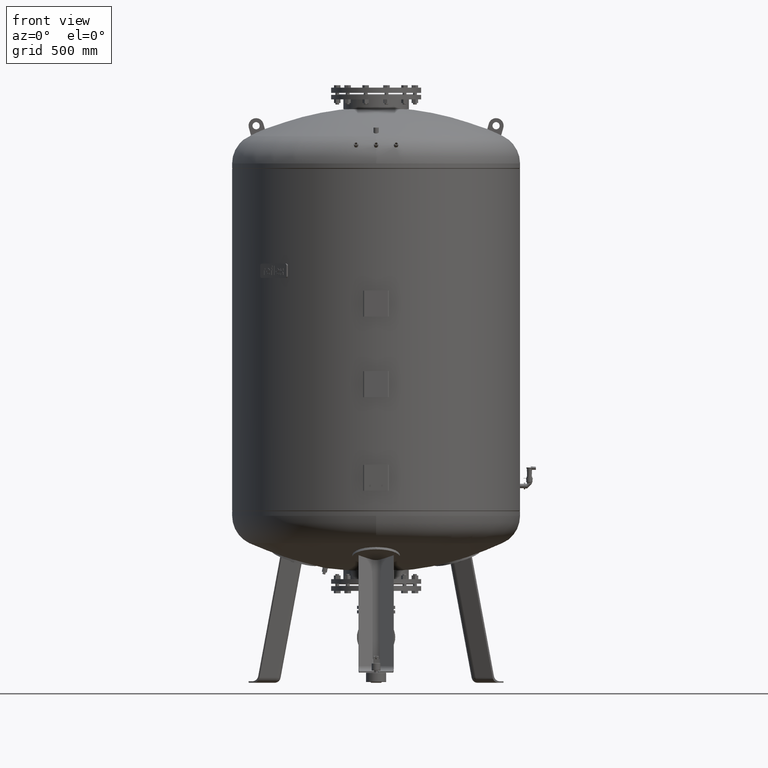
[diagram: clean part render]
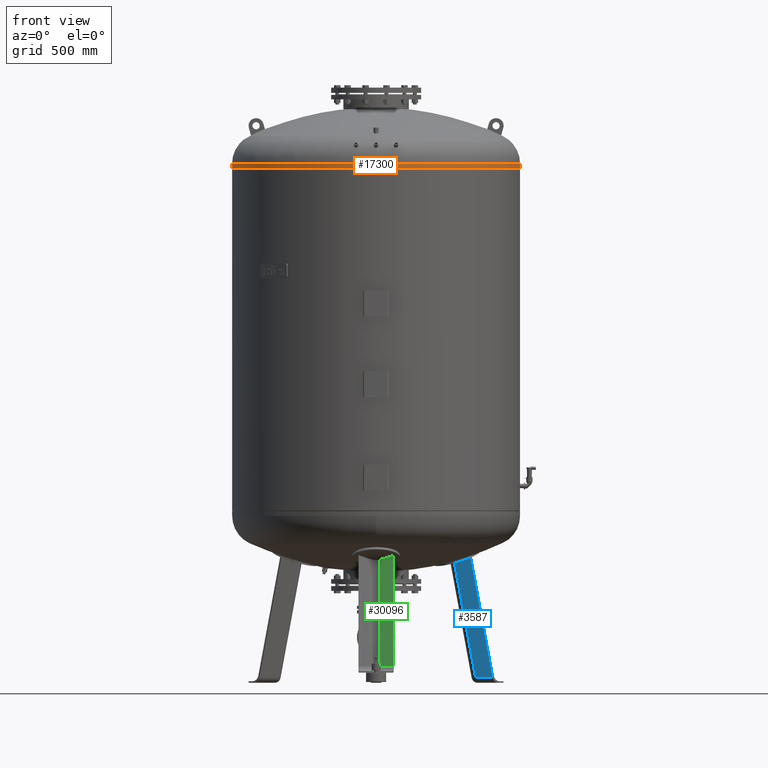
[diagram: same view with three faces highlighted in distinct colors, each labeled with its STEP entity id]
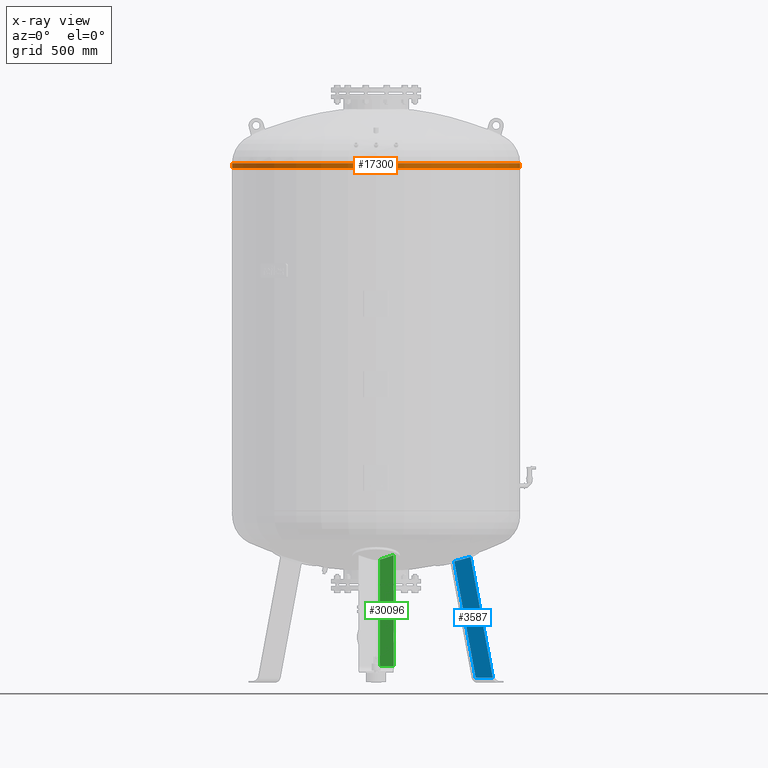
[diagram: x-ray of the same camera — body ghosted, the three highlighted faces saturated]
A machine part, front view with three faces highlighted in distinct colors.
The next image is the same camera in x-ray (body ghosted, the three faces saturated) — at least one of them is partly hidden behind the body in this view.
Their STEP definitions:

[orange] entity #17300 — the highlighted cylindrical surface (partial cylindrical patch) has radius 600 mm, axis along (0, -0, -1).
#16345=CARTESIAN_POINT('',(600.000000000000110,-4.684274E-014,2145.0));
#16346=VERTEX_POINT('',#16345);
#16347=CARTESIAN_POINT('',(600.0,-4.336858E-014,2163.912457433727900));
#16348=VERTEX_POINT('',#16347);
#16349=CARTESIAN_POINT('',(600.000000000000110,-4.684274E-014,2145.0));
#16350=DIRECTION('',(0.0,0.0,1.0));
#16351=VECTOR('',#16350,18.912457433727923);
#16352=LINE('',#16349,#16351);
#16353=EDGE_CURVE('',#16346,#16348,#16352,.T.);
#16355=CARTESIAN_POINT('',(-599.999999999999890,2.663364E-014,2145.0));
#16356=VERTEX_POINT('',#16355);
#16364=CARTESIAN_POINT('',(-599.999999999999890,3.010780E-014,2163.912457433727500));
#16365=VERTEX_POINT('',#16364);
#16366=CARTESIAN_POINT('',(-599.999999999999890,2.663364E-014,2145.0));
#16367=DIRECTION('',(0.0,0.0,1.0));
#16368=VECTOR('',#16367,18.912457433727468);
#16369=LINE('',#16366,#16368);
#16370=EDGE_CURVE('',#16356,#16365,#16369,.T.);
#16501=CARTESIAN_POINT('',(4.214189E-014,-600.0,2163.912457433727500));
#16502=VERTEX_POINT('',#16501);
#16510=CARTESIAN_POINT('',(6.604942E-015,-4.336858E-014,2163.912457433727500));
#16511=DIRECTION('',(0.0,0.0,-1.0));
#16512=DIRECTION('',(1.0,0.0,0.0));
#16513=AXIS2_PLACEMENT_3D('',#16510,#16511,#16512);
#16514=CIRCLE('',#16513,600.0);
#16515=EDGE_CURVE('',#16348,#16502,#16514,.T.);
#16840=CARTESIAN_POINT('',(6.604942E-015,-4.336858E-014,2163.912457433727500));
#16841=DIRECTION('',(0.0,0.0,-1.0));
#16842=DIRECTION('',(1.0,0.0,0.0));
#16843=AXIS2_PLACEMENT_3D('',#16840,#16841,#16842);
#16844=CIRCLE('',#16843,600.0);
#16845=EDGE_CURVE('',#16502,#16365,#16844,.T.);
#17282=CARTESIAN_POINT('',(6.869496E-015,-4.510566E-014,2154.456228716863700));
#17283=DIRECTION('',(2.797667E-017,-1.836970E-016,-1.0));
#17284=DIRECTION('',(1.0,0.0,0.0));
#17285=AXIS2_PLACEMENT_3D('',#17282,#17283,#17284);
#17286=CYLINDRICAL_SURFACE('',#17285,599.999999999999890);
#17287=ORIENTED_EDGE('',*,*,#16353,.T.);
#17288=ORIENTED_EDGE('',*,*,#16515,.T.);
#17289=ORIENTED_EDGE('',*,*,#16845,.T.);
#17290=ORIENTED_EDGE('',*,*,#16370,.F.);
#17291=CARTESIAN_POINT('',(7.134050E-015,-4.684274E-014,2145.0));
#17292=DIRECTION('',(0.0,0.0,-1.0));
#17293=DIRECTION('',(1.0,0.0,0.0));
#17294=AXIS2_PLACEMENT_3D('',#17291,#17292,#17293);
#17295=CIRCLE('',#17294,600.0);
#17296=EDGE_CURVE('',#16346,#16356,#17295,.T.);
#17297=ORIENTED_EDGE('',*,*,#17296,.F.);
#17298=EDGE_LOOP('',(#17287,#17288,#17289,#17290,#17297));
#17299=FACE_OUTER_BOUND('',#17298,.T.);
#17300=ADVANCED_FACE('',(#17299),#17286,.T.);

[blue] entity #3587 — the highlighted planar face has unit normal (-0.3243, -0.9325, -0.1588).
#2912=CARTESIAN_POINT('',(486.243118968847450,195.862106057392200,21.029948423057292));
#2913=VERTEX_POINT('',#2912);
#2921=CARTESIAN_POINT('',(414.642004680756830,220.760904562808090,21.029948423057292));
#2922=VERTEX_POINT('',#2921);
#2923=CARTESIAN_POINT('',(486.243118968847450,195.862106057392200,21.029948423057292));
#2924=DIRECTION('',(-0.944521094592691,0.328450760190054,0.0));
#2925=VECTOR('',#2924,75.806792138366575);
#2926=LINE('',#2923,#2925);
#2927=EDGE_CURVE('',#2913,#2922,#2926,.T.);
#3382=CARTESIAN_POINT('',(325.378596878368800,169.224652039316080,505.947959126467590));
#3383=VERTEX_POINT('',#3382);
#3413=CARTESIAN_POINT('',(393.596570269069160,142.372596226085530,524.326665410275270));
#3414=VERTEX_POINT('',#3413);
#3415=CARTESIAN_POINT('',(75.381030288212628,91.110193958312436,1475.169845689218200));
#3416=DIRECTION('',(0.324282864533177,0.932535537409926,0.158802063077708));
#3417=DIRECTION('',(0.180056805991956,0.103955845408880,-0.978147600733805));
#3418=AXIS2_PLACEMENT_3D('',#3415,#3416,#3417);
#3419=CIRCLE('',#3418,1003.987906926445600);
#3420=EDGE_CURVE('',#3414,#3383,#3419,.T.);
#3558=CARTESIAN_POINT('',(486.243118968847450,195.862106057392200,21.029948423057292));
#3559=DIRECTION('',(-0.180056805991956,-0.103955845408880,0.978147600733806));
#3560=VECTOR('',#3559,514.540665038328710);
#3561=LINE('',#3558,#3560);
#3562=EDGE_CURVE('',#2913,#3414,#3561,.T.);
#3571=CARTESIAN_POINT('',(494.077027787752740,200.385015422794170,-21.527282742766886));
#3572=DIRECTION('',(-0.324282864533177,-0.932535537409926,-0.158802063077709));
#3573=DIRECTION('',(0.180056805991956,0.103955845408880,-0.978147600733806));
#3574=AXIS2_PLACEMENT_3D('',#3571,#3572,#3573);
#3575=PLANE('',#3574);
#3576=ORIENTED_EDGE('',*,*,#3420,.T.);
#3577=CARTESIAN_POINT('',(414.642004680756830,220.760904562808090,21.029948423057292));
#3578=DIRECTION('',(-0.180056805991956,-0.103955845408880,0.978147600733806));
#3579=VECTOR('',#3578,495.751367523291150);
#3580=LINE('',#3577,#3579);
#3581=EDGE_CURVE('',#2922,#3383,#3580,.T.);
#3582=ORIENTED_EDGE('',*,*,#3581,.F.);
#3583=ORIENTED_EDGE('',*,*,#2927,.F.);
#3584=ORIENTED_EDGE('',*,*,#3562,.T.);
#3585=EDGE_LOOP('',(#3576,#3582,#3583,#3584));
#3586=FACE_OUTER_BOUND('',#3585,.T.);
#3587=ADVANCED_FACE('',(#3586),#3575,.T.);

[green] entity #30096 — the highlighted planar face has unit normal (-0.6455, -0.7471, 0.1588).
#29718=CARTESIAN_POINT('',(16.136450826554576,-476.124712592942840,69.029948423057277));
#29719=VERTEX_POINT('',#29718);
#29728=CARTESIAN_POINT('',(72.837866169855033,-525.111649658243320,69.029948423057277));
#29729=VERTEX_POINT('',#29728);
#29737=CARTESIAN_POINT('',(72.837866169855033,-525.111649658243320,69.029948423057277));
#29738=DIRECTION('',(-0.756707249513242,0.653753882232530,0.0));
#29739=VECTOR('',#29738,74.931772333057609);
#29740=LINE('',#29737,#29739);
#29741=EDGE_CURVE('',#29729,#29719,#29740,.T.);
#29931=CARTESIAN_POINT('',(16.136450826554661,-381.687895827731270,513.320240019970470));
#29932=VERTEX_POINT('',#29931);
#29962=CARTESIAN_POINT('',(72.837866169855147,-426.744909196530440,531.809077370483240));
#29963=VERTEX_POINT('',#29962);
#29964=CARTESIAN_POINT('',(-44.843693232683513,-123.286972658331760,1481.144501634031000));
#29965=DIRECTION('',(0.645458033062182,0.747104967402682,-0.158802063077709));
#29966=DIRECTION('',(5.092368E-017,0.207911690817760,0.978147600733805));
#29967=AXIS2_PLACEMENT_3D('',#29964,#29965,#29966);
#29968=CIRCLE('',#29967,1003.580298946269700);
#29969=EDGE_CURVE('',#29963,#29932,#29968,.T.);
#30066=CARTESIAN_POINT('',(72.837866169855033,-525.111649658243320,69.029948423057277));
#30067=DIRECTION('',(2.402928E-016,0.207911690817760,0.978147600733806));
#30068=VECTOR('',#30067,473.117889979231620);
#30069=LINE('',#30066,#30068);
#30070=EDGE_CURVE('',#29729,#29963,#30069,.T.);
#30080=CARTESIAN_POINT('',(72.837866169855033,-543.297400540858230,-16.527282742766886));
#30081=DIRECTION('',(-0.645458033062182,-0.747104967402682,0.158802063077709));
#30082=DIRECTION('',(1.475869E-016,0.207911690817760,0.978147600733806));
#30083=AXIS2_PLACEMENT_3D('',#30080,#30081,#30082);
#30084=PLANE('',#30083);
#30085=CARTESIAN_POINT('',(16.136450826554576,-476.124712592942840,69.029948423057277));
#30086=DIRECTION('',(1.877193E-016,0.207911690817760,0.978147600733806));
#30087=VECTOR('',#30086,454.216001003945620);
#30088=LINE('',#30085,#30087);
#30089=EDGE_CURVE('',#29719,#29932,#30088,.T.);
#30090=ORIENTED_EDGE('',*,*,#30089,.F.);
#30091=ORIENTED_EDGE('',*,*,#29741,.F.);
#30092=ORIENTED_EDGE('',*,*,#30070,.T.);
#30093=ORIENTED_EDGE('',*,*,#29969,.T.);
#30094=EDGE_LOOP('',(#30090,#30091,#30092,#30093));
#30095=FACE_OUTER_BOUND('',#30094,.T.);
#30096=ADVANCED_FACE('',(#30095),#30084,.T.);